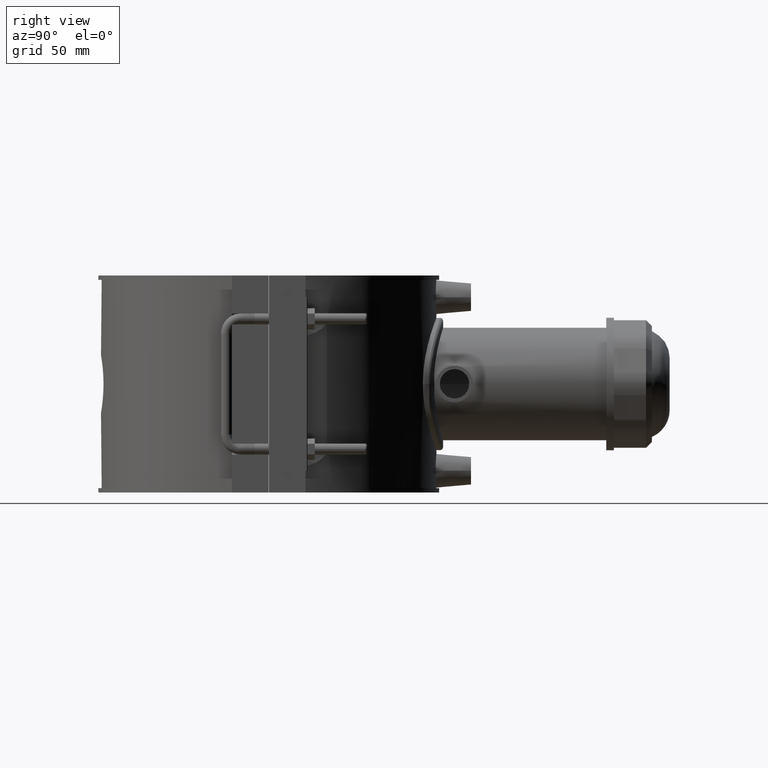
[diagram: clean part render]
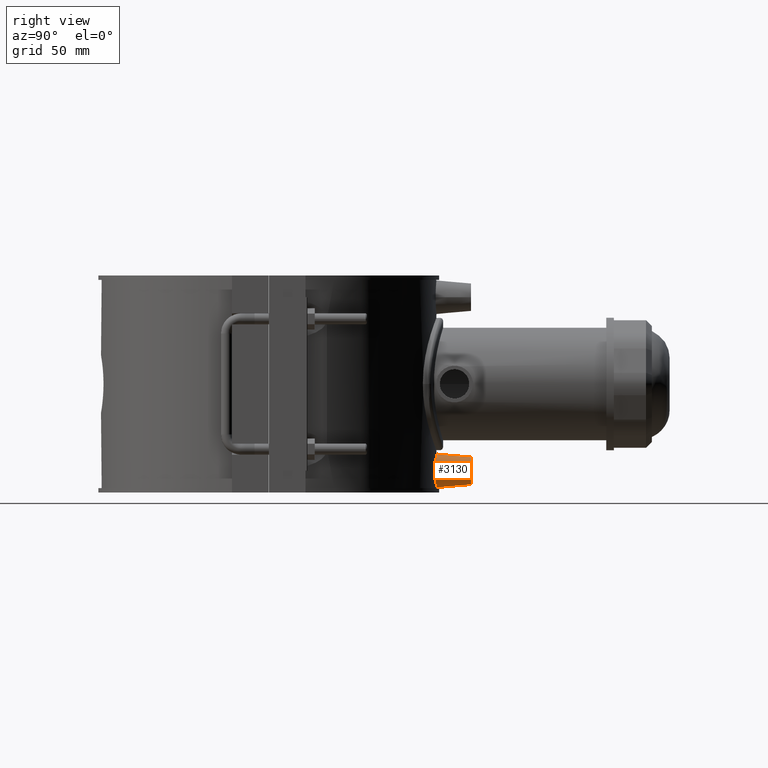
[diagram: same view with one face highlighted and labeled with its STEP entity id]
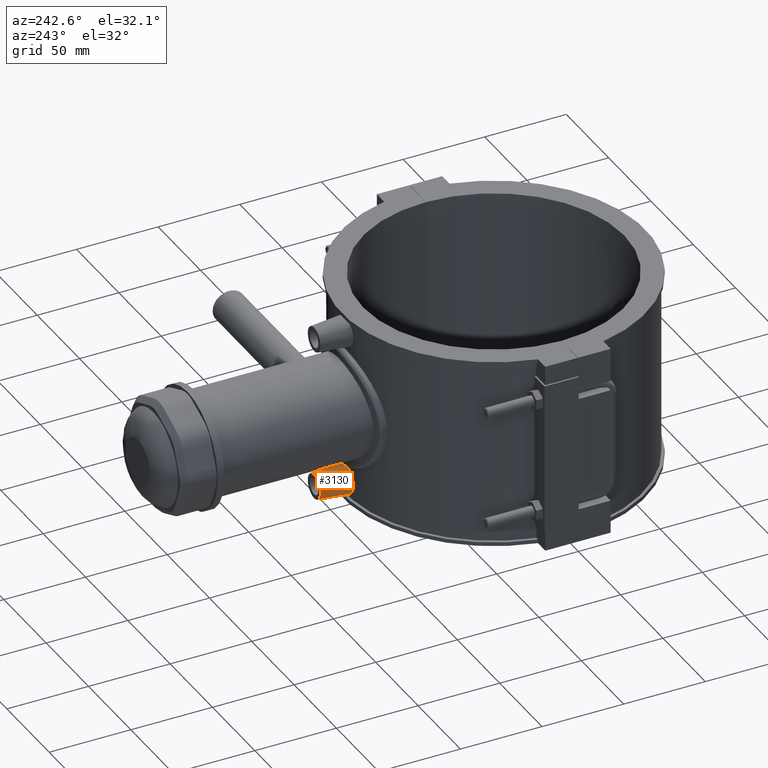
[diagram: same view with one face highlighted and labeled with its STEP entity id]
A machine part, right view. The second image highlights one B-rep face of the part: STEP entity #3130.
A second angle (auxiliary view) of the same face is appended — the face is thin or edge-on in the first view.
In plain terms, the highlighted conical surface has half-angle 5 deg.
Its self-contained STEP definition (entity closure, byte-faithful):
#26=CONICAL_SURFACE('',#3363,7.5,5.);
#745=FACE_BOUND('',#1173,.T.);
#821=CIRCLE('',#3364,7.5);
#962=FACE_OUTER_BOUND('',#1172,.T.);
#1172=EDGE_LOOP('',(#2498));
#1173=EDGE_LOOP('',(#2499));
#1334=B_SPLINE_CURVE_WITH_KNOTS('',3,(#5336,#5337,#5338,#5339,#5340,#5341,
#5342,#5343,#5344,#5345,#5346,#5347,#5348,#5349,#5350,#5351,#5352,#5353,
#5354,#5355,#5356,#5357,#5358,#5359,#5360,#5361,#5362,#5363,#5364,#5365,
#5366,#5367,#5368,#5369),.UNSPECIFIED.,.T.,.F.,(4,2,2,2,2,2,2,2,2,2,2,2,
2,2,2,2,4),(0.,0.346065054083076,0.692130108166152,1.03704234345026,1.38195457873437,
1.72686681401849,2.0717790493026,2.41784410338567,2.76390915746875,3.10957379604714,
3.45523843462554,3.80055069679235,4.14586295895917,4.49117522112599,4.8364874832928,
5.1821521218712,5.52781676044959),.UNSPECIFIED.);
#1527=VERTEX_POINT('',#5333);
#1528=VERTEX_POINT('',#5335);
#1888=EDGE_CURVE('',#1527,#1527,#821,.T.);
#1889=EDGE_CURVE('',#1528,#1528,#1334,.T.);
#2498=ORIENTED_EDGE('',*,*,#1888,.T.);
#2499=ORIENTED_EDGE('',*,*,#1889,.F.);
#3130=ADVANCED_FACE('',(#962,#745),#26,.T.);
#3363=AXIS2_PLACEMENT_3D('',#5332,#3937,#3938);
#3364=AXIS2_PLACEMENT_3D('',#5334,#3939,#3940);
#3937=DIRECTION('center_axis',(0.,-1.,0.));
#3938=DIRECTION('ref_axis',(1.,0.,0.));
#3939=DIRECTION('center_axis',(0.,-1.,0.));
#3940=DIRECTION('ref_axis',(1.,0.,0.));
#5332=CARTESIAN_POINT('Origin',(0.,110.,-47.2));
#5333=CARTESIAN_POINT('',(-7.5,110.,-47.2));
#5334=CARTESIAN_POINT('Origin',(0.,110.,-47.2));
#5335=CARTESIAN_POINT('',(9.18535871939005,90.7362616884569,-47.2));
#5336=CARTESIAN_POINT('Ctrl Pts',(9.18535871939005,90.7362616884569,-47.2));
#5337=CARTESIAN_POINT('Ctrl Pts',(9.18535871939005,90.7362616884569,-46.0464498197231));
#5338=CARTESIAN_POINT('Ctrl Pts',(8.95271060001911,90.7607479368476,-44.8172530720308));
#5339=CARTESIAN_POINT('Ctrl Pts',(8.00941505919708,90.8488506341557,-42.5592810057039));
#5340=CARTESIAN_POINT('Ctrl Pts',(7.29884239188916,90.9111644020812,-41.5304238181904));
#5341=CARTESIAN_POINT('Ctrl Pts',(5.66508973086934,91.0275518498036,-39.9110715030919));
#5342=CARTESIAN_POINT('Ctrl Pts',(4.63386079845111,91.0892061742376,-39.2111731607874));
#5343=CARTESIAN_POINT('Ctrl Pts',(2.37619622321046,91.1760376342106,-38.2832359769919));
#5344=CARTESIAN_POINT('Ctrl Pts',(1.14970745094704,91.2,-38.0552131257126));
#5345=CARTESIAN_POINT('Ctrl Pts',(-1.14970745094704,91.2,-38.0552131257126));
#5346=CARTESIAN_POINT('Ctrl Pts',(-2.37619622321046,91.1760376342106,-38.2832359769919));
#5347=CARTESIAN_POINT('Ctrl Pts',(-4.63386079845111,91.0892061742376,-39.2111731607874));
#5348=CARTESIAN_POINT('Ctrl Pts',(-5.66508973086934,91.0275518498036,-39.9110715030919));
#5349=CARTESIAN_POINT('Ctrl Pts',(-7.29884239188916,90.9111644020812,-41.5304238181904));
#5350=CARTESIAN_POINT('Ctrl Pts',(-8.00941505919708,90.8488506341557,-42.5592810057039));
#5351=CARTESIAN_POINT('Ctrl Pts',(-8.95271060001911,90.7607479368476,-44.8172530720308));
#5352=CARTESIAN_POINT('Ctrl Pts',(-9.18535871939005,90.7362616884569,-46.0464498197231));
#5353=CARTESIAN_POINT('Ctrl Pts',(-9.18535871939005,90.7362616884569,-48.352215461928));
#5354=CARTESIAN_POINT('Ctrl Pts',(-8.95324403729757,90.7606900825598,-49.5800841296841));
#5355=CARTESIAN_POINT('Ctrl Pts',(-8.01194907454096,90.8486219657987,-51.8360347071785));
#5356=CARTESIAN_POINT('Ctrl Pts',(-7.30284350220761,90.9108281977478,-52.864198165275));
#5357=CARTESIAN_POINT('Ctrl Pts',(-5.67049896938736,91.0272172622692,-54.4849679392758));
#5358=CARTESIAN_POINT('Ctrl Pts',(-4.63856343325106,91.0889794944252,-55.1863216568089));
#5359=CARTESIAN_POINT('Ctrl Pts',(-2.37886109944089,91.1759808049367,-56.1162391747394));
#5360=CARTESIAN_POINT('Ctrl Pts',(-1.15104087388939,91.2,-56.3447868742874));
#5361=CARTESIAN_POINT('Ctrl Pts',(1.15104087388939,91.2,-56.3447868742874));
#5362=CARTESIAN_POINT('Ctrl Pts',(2.37886109944089,91.1759808049367,-56.1162391747394));
#5363=CARTESIAN_POINT('Ctrl Pts',(4.63856343325106,91.0889794944252,-55.1863216568089));
#5364=CARTESIAN_POINT('Ctrl Pts',(5.67049896938736,91.0272172622692,-54.4849679392758));
#5365=CARTESIAN_POINT('Ctrl Pts',(7.30284350220761,90.9108281977478,-52.864198165275));
#5366=CARTESIAN_POINT('Ctrl Pts',(8.01194907454096,90.8486219657987,-51.8360347071784));
#5367=CARTESIAN_POINT('Ctrl Pts',(8.95324403729757,90.7606900825598,-49.5800841296841));
#5368=CARTESIAN_POINT('Ctrl Pts',(9.18535871939005,90.7362616884569,-48.352215461928));
#5369=CARTESIAN_POINT('Ctrl Pts',(9.18535871939005,90.7362616884569,-47.2));